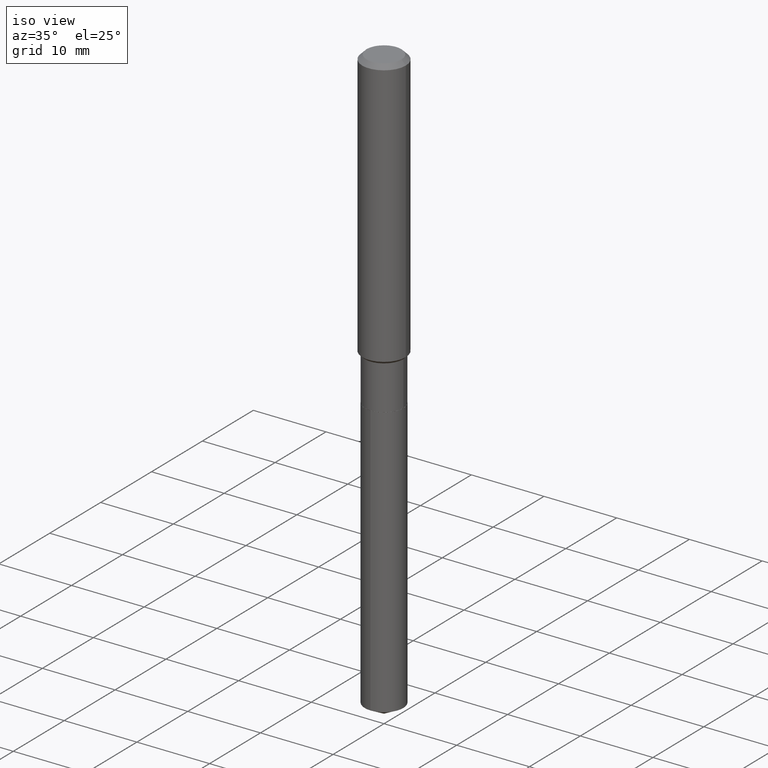
[diagram: clean part render]
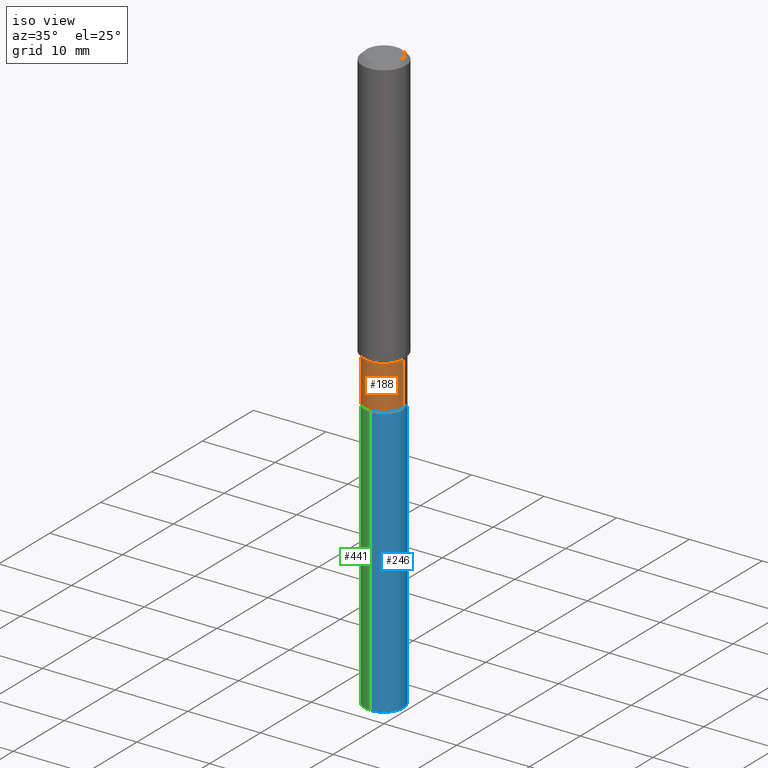
[diagram: same view with three faces highlighted in distinct colors, each labeled with its STEP entity id]
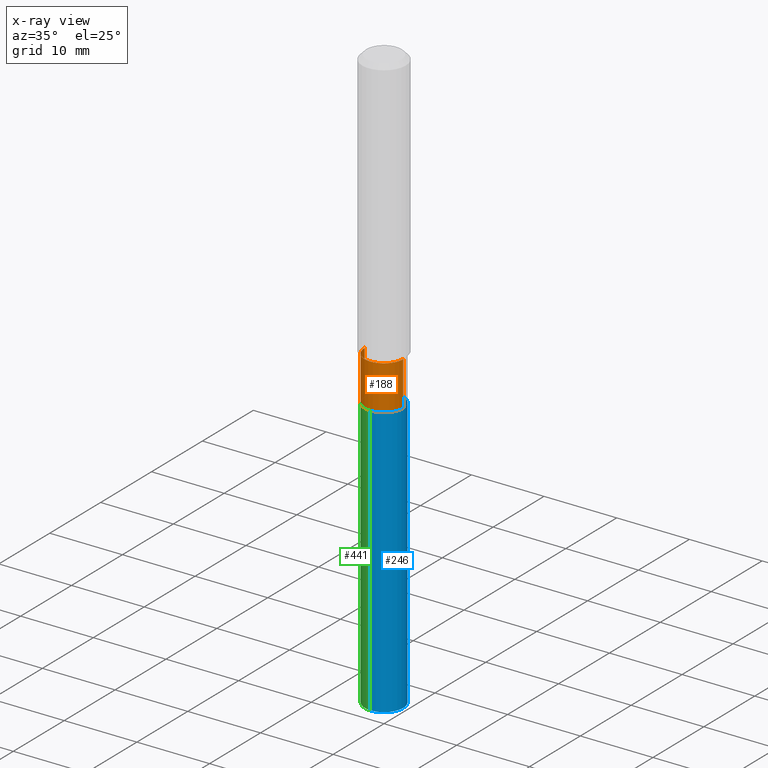
[diagram: x-ray of the same camera — body ghosted, the three highlighted faces saturated]
A machine part, iso view with three faces highlighted in distinct colors.
The next image is the same camera in x-ray (body ghosted, the three faces saturated) — at least one of them is partly hidden behind the body in this view.
Their STEP definitions:

[orange] entity #188 — the highlighted cylindrical surface (edge-blend (fillet) strip) has radius 2.6505 mm, axis along (-0, 0, 1).
#8 = EDGE_CURVE ( 'NONE', #153, #382, #288, .T. ) ;
#35 = CARTESIAN_POINT ( 'NONE',  ( 4.167567939500710177E-29, -5.950182497656488633E-15, -1.704200000000000159 ) ) ;
#38 = CARTESIAN_POINT ( 'NONE',  ( 3.581878160419369815E-29, -5.113972717003555292E-15, -1.464700000000000113 ) ) ;
#43 = DIRECTION ( 'NONE',  ( -2.445468806185136597E-29, 3.491481338843145583E-15, 1.000000000000000000 ) ) ;
#59 = CIRCLE ( 'NONE', #336, 0.1043499999999999567 ) ;
#70 = VERTEX_POINT ( 'NONE', #324 ) ;
#91 = DIRECTION ( 'NONE',  ( -2.445468806185136877E-29, 3.491481338843145188E-15, 1.000000000000000000 ) ) ;
#94 = ORIENTED_EDGE ( 'NONE', *, *, #369, .T. ) ;
#119 = DIRECTION ( 'NONE',  ( 1.000000000000000000, -6.982962677686265922E-15, 0.000000000000000000 ) ) ;
#120 = ORIENTED_EDGE ( 'NONE', *, *, #8, .F. ) ;
#122 = ORIENTED_EDGE ( 'NONE', *, *, #364, .T. ) ;
#136 = CYLINDRICAL_SURFACE ( 'NONE', #283, 0.1043499999999999706 ) ;
#142 = DIRECTION ( 'NONE',  ( 1.000000000000000000, -6.982962677686266711E-15, 4.876176775795936353E-29 ) ) ;
#153 = VERTEX_POINT ( 'NONE', #295 ) ;
#156 = VERTEX_POINT ( 'NONE', #405 ) ;
#175 = CARTESIAN_POINT ( 'NONE',  ( 0.000000000000000000, 0.000000000000000000, 0.000000000000000000 ) ) ;
#182 = VECTOR ( 'NONE', #91, 39.37007874015748143 ) ;
#188 = ADVANCED_FACE ( 'NONE', ( #258 ), #136, .T. ) ;
#258 = FACE_OUTER_BOUND ( 'NONE', #458, .T. ) ;
#259 = VECTOR ( 'NONE', #457, 39.37007874015748143 ) ;
#261 = DIRECTION ( 'NONE',  ( -2.445468806185136597E-29, 3.491481338843145583E-15, 1.000000000000000000 ) ) ;
#268 = CARTESIAN_POINT ( 'NONE',  ( 0.1043499999999999706, -7.286721554165617206E-16, 5.088290465543058008E-30 ) ) ;
#283 = AXIS2_PLACEMENT_3D ( 'NONE', #175, #437, #142 ) ;
#288 = LINE ( 'NONE', #316, #182 ) ;
#295 = CARTESIAN_POINT ( 'NONE',  ( -0.1043499999999999844, -4.790626262564358219E-15, -1.704200000000000159 ) ) ;
#303 = CARTESIAN_POINT ( 'NONE',  ( -0.1043499999999999567, -4.790626262564358219E-15, -1.464700000000000113 ) ) ;
#305 = DIRECTION ( 'NONE',  ( 1.000000000000000000, -6.982962677686263555E-15, 0.000000000000000000 ) ) ;
#316 = CARTESIAN_POINT ( 'NONE',  ( -0.1043499999999999706, 7.414513447656643348E-16, -5.132908766680992704E-30 ) ) ;
#317 = EDGE_CURVE ( 'NONE', #382, #156, #59, .T. ) ;
#324 = CARTESIAN_POINT ( 'NONE',  ( 0.1043499999999999844, -6.678854653073050255E-15, -1.704200000000000159 ) ) ;
#336 = AXIS2_PLACEMENT_3D ( 'NONE', #38, #43, #119 ) ;
#364 = EDGE_CURVE ( 'NONE', #153, #70, #402, .T. ) ;
#369 = EDGE_CURVE ( 'NONE', #70, #156, #378, .T. ) ;
#371 = ORIENTED_EDGE ( 'NONE', *, *, #317, .F. ) ;
#378 = LINE ( 'NONE', #268, #259 ) ;
#382 = VERTEX_POINT ( 'NONE', #303 ) ;
#402 = CIRCLE ( 'NONE', #471, 0.1043499999999999844 ) ;
#405 = CARTESIAN_POINT ( 'NONE',  ( 0.1043499999999999567, -5.842644872420116914E-15, -1.464700000000000113 ) ) ;
#437 = DIRECTION ( 'NONE',  ( -2.445468806185136597E-29, 3.491481338843145583E-15, 1.000000000000000000 ) ) ;
#457 = DIRECTION ( 'NONE',  ( -2.445468806185136877E-29, 3.491481338843145188E-15, 1.000000000000000000 ) ) ;
#458 = EDGE_LOOP ( 'NONE', ( #120, #122, #94, #371 ) ) ;
#471 = AXIS2_PLACEMENT_3D ( 'NONE', #35, #261, #305 ) ;

[blue] entity #246 — the highlighted cylindrical surface (edge-blend (fillet) strip) has radius 2.6505 mm, axis along (-0, 0, 1).
#21 = EDGE_CURVE ( 'NONE', #53, #157, #96, .T. ) ;
#32 = CYLINDRICAL_SURFACE ( 'NONE', #103, 0.1043499999999999844 ) ;
#50 = AXIS2_PLACEMENT_3D ( 'NONE', #413, #347, #83 ) ;
#53 = VERTEX_POINT ( 'NONE', #468 ) ;
#64 = CARTESIAN_POINT ( 'NONE',  ( 7.414513447657423334E-16, 0.1043499999999940447, -1.704700000000000326 ) ) ;
#69 = CARTESIAN_POINT ( 'NONE',  ( -7.286721554165200096E-16, -0.1043500000000059519, -1.704699999999999660 ) ) ;
#73 = ORIENTED_EDGE ( 'NONE', *, *, #340, .F. ) ;
#75 = CIRCLE ( 'NONE', #203, 0.1043499999999999844 ) ;
#79 = ORIENTED_EDGE ( 'NONE', *, *, #278, .F. ) ;
#83 = DIRECTION ( 'NONE',  ( -6.982962677686265922E-15, -1.000000000000000000, 2.617966452960482631E-15 ) ) ;
#96 = LINE ( 'NONE', #387, #290 ) ;
#103 = AXIS2_PLACEMENT_3D ( 'NONE', #370, #331, #484 ) ;
#109 = LINE ( 'NONE', #69, #274 ) ;
#110 = VERTEX_POINT ( 'NONE', #444 ) ;
#118 = ORIENTED_EDGE ( 'NONE', *, *, #21, .T. ) ;
#157 = VERTEX_POINT ( 'NONE', #64 ) ;
#178 = CARTESIAN_POINT ( 'NONE',  ( 7.759008975054495409E-29, -1.107784814879499079E-14, -3.172816120806124740 ) ) ;
#192 = EDGE_LOOP ( 'NONE', ( #453, #118, #73, #79 ) ) ;
#202 = EDGE_CURVE ( 'NONE', #271, #53, #75, .T. ) ;
#203 = AXIS2_PLACEMENT_3D ( 'NONE', #178, #221, #401 ) ;
#221 = DIRECTION ( 'NONE',  ( -2.445459354522547026E-29, 3.491494874161929332E-15, 1.000000000000000000 ) ) ;
#224 = FACE_OUTER_BOUND ( 'NONE', #192, .T. ) ;
#226 = DIRECTION ( 'NONE',  ( -2.445459354522547026E-29, 3.491494874161929332E-15, 1.000000000000000000 ) ) ;
#244 = DIRECTION ( 'NONE',  ( -2.445459354522547026E-29, 3.491494874161929332E-15, 1.000000000000000000 ) ) ;
#246 = ADVANCED_FACE ( 'NONE', ( #224 ), #32, .T. ) ;
#266 = CIRCLE ( 'NONE', #50, 0.1043499999999999844 ) ;
#271 = VERTEX_POINT ( 'NONE', #297 ) ;
#274 = VECTOR ( 'NONE', #226, 39.37007874015748143 ) ;
#278 = EDGE_CURVE ( 'NONE', #271, #110, #109, .T. ) ;
#290 = VECTOR ( 'NONE', #244, 39.37007874015748143 ) ;
#297 = CARTESIAN_POINT ( 'NONE',  ( -7.286721554164842150E-16, -0.1043500000000110589, -3.172816120806124296 ) ) ;
#331 = DIRECTION ( 'NONE',  ( -2.445459354522547026E-29, 3.491494874161929332E-15, 1.000000000000000000 ) ) ;
#340 = EDGE_CURVE ( 'NONE', #110, #157, #266, .T. ) ;
#347 = DIRECTION ( 'NONE',  ( -2.445459354522547026E-29, 3.491494874161929332E-15, 1.000000000000000000 ) ) ;
#370 = CARTESIAN_POINT ( 'NONE',  ( 4.168790673903801858E-29, -5.951928238325910137E-15, -1.704699999999999882 ) ) ;
#387 = CARTESIAN_POINT ( 'NONE',  ( 7.414513447657060458E-16, 0.1043499999999940309, -1.704700000000000326 ) ) ;
#401 = DIRECTION ( 'NONE',  ( -6.982962677686265922E-15, -1.000000000000000000, 5.235932905920965262E-15 ) ) ;
#413 = CARTESIAN_POINT ( 'NONE',  ( 4.168790673903801858E-29, -5.951928238325910137E-15, -1.704699999999999882 ) ) ;
#444 = CARTESIAN_POINT ( 'NONE',  ( -7.286721554165200096E-16, -0.1043500000000059519, -1.704699999999999660 ) ) ;
#453 = ORIENTED_EDGE ( 'NONE', *, *, #202, .T. ) ;
#468 = CARTESIAN_POINT ( 'NONE',  ( 7.414513447657420375E-16, 0.1043499999999889100, -3.172816120806125628 ) ) ;
#484 = DIRECTION ( 'NONE',  ( -6.982962677686265922E-15, -1.000000000000000000, 2.617966452960482631E-15 ) ) ;

[green] entity #441 — the highlighted cylindrical surface (edge-blend (fillet) strip) has radius 2.6505 mm, axis along (-0, 0, 1).
#21 = EDGE_CURVE ( 'NONE', #53, #157, #96, .T. ) ;
#31 = CARTESIAN_POINT ( 'NONE',  ( 7.759008975054495409E-29, -1.107784814879499079E-14, -3.172816120806124740 ) ) ;
#53 = VERTEX_POINT ( 'NONE', #468 ) ;
#64 = CARTESIAN_POINT ( 'NONE',  ( 7.414513447657423334E-16, 0.1043499999999940447, -1.704700000000000326 ) ) ;
#69 = CARTESIAN_POINT ( 'NONE',  ( -7.286721554165200096E-16, -0.1043500000000059519, -1.704699999999999660 ) ) ;
#77 = CYLINDRICAL_SURFACE ( 'NONE', #222, 0.1043499999999999844 ) ;
#85 = AXIS2_PLACEMENT_3D ( 'NONE', #31, #219, #365 ) ;
#96 = LINE ( 'NONE', #387, #290 ) ;
#99 = ORIENTED_EDGE ( 'NONE', *, *, #21, .F. ) ;
#109 = LINE ( 'NONE', #69, #274 ) ;
#110 = VERTEX_POINT ( 'NONE', #444 ) ;
#113 = CARTESIAN_POINT ( 'NONE',  ( 4.168790673903801858E-29, -5.951928238325910137E-15, -1.704699999999999882 ) ) ;
#133 = ORIENTED_EDGE ( 'NONE', *, *, #198, .T. ) ;
#154 = DIRECTION ( 'NONE',  ( -6.982962677686265922E-15, -1.000000000000000000, 2.617966452960482631E-15 ) ) ;
#157 = VERTEX_POINT ( 'NONE', #64 ) ;
#193 = CIRCLE ( 'NONE', #85, 0.1043499999999999844 ) ;
#195 = CARTESIAN_POINT ( 'NONE',  ( 4.168790673903801858E-29, -5.951928238325910137E-15, -1.704699999999999882 ) ) ;
#198 = EDGE_CURVE ( 'NONE', #53, #271, #193, .T. ) ;
#208 = EDGE_LOOP ( 'NONE', ( #99, #133, #302, #487 ) ) ;
#219 = DIRECTION ( 'NONE',  ( -2.445459354522547026E-29, 3.491494874161929332E-15, 1.000000000000000000 ) ) ;
#222 = AXIS2_PLACEMENT_3D ( 'NONE', #195, #232, #154 ) ;
#226 = DIRECTION ( 'NONE',  ( -2.445459354522547026E-29, 3.491494874161929332E-15, 1.000000000000000000 ) ) ;
#232 = DIRECTION ( 'NONE',  ( -2.445459354522547026E-29, 3.491494874161929332E-15, 1.000000000000000000 ) ) ;
#244 = DIRECTION ( 'NONE',  ( -2.445459354522547026E-29, 3.491494874161929332E-15, 1.000000000000000000 ) ) ;
#271 = VERTEX_POINT ( 'NONE', #297 ) ;
#274 = VECTOR ( 'NONE', #226, 39.37007874015748143 ) ;
#278 = EDGE_CURVE ( 'NONE', #271, #110, #109, .T. ) ;
#290 = VECTOR ( 'NONE', #244, 39.37007874015748143 ) ;
#297 = CARTESIAN_POINT ( 'NONE',  ( -7.286721554164842150E-16, -0.1043500000000110589, -3.172816120806124296 ) ) ;
#301 = DIRECTION ( 'NONE',  ( -2.445459354522547026E-29, 3.491494874161929332E-15, 1.000000000000000000 ) ) ;
#302 = ORIENTED_EDGE ( 'NONE', *, *, #278, .T. ) ;
#314 = CIRCLE ( 'NONE', #389, 0.1043499999999999844 ) ;
#365 = DIRECTION ( 'NONE',  ( -6.982962677686265922E-15, -1.000000000000000000, 5.235932905920965262E-15 ) ) ;
#380 = DIRECTION ( 'NONE',  ( -6.982962677686265922E-15, -1.000000000000000000, 2.617966452960482631E-15 ) ) ;
#387 = CARTESIAN_POINT ( 'NONE',  ( 7.414513447657060458E-16, 0.1043499999999940309, -1.704700000000000326 ) ) ;
#389 = AXIS2_PLACEMENT_3D ( 'NONE', #113, #301, #380 ) ;
#409 = FACE_OUTER_BOUND ( 'NONE', #208, .T. ) ;
#436 = EDGE_CURVE ( 'NONE', #157, #110, #314, .T. ) ;
#441 = ADVANCED_FACE ( 'NONE', ( #409 ), #77, .T. ) ;
#444 = CARTESIAN_POINT ( 'NONE',  ( -7.286721554165200096E-16, -0.1043500000000059519, -1.704699999999999660 ) ) ;
#468 = CARTESIAN_POINT ( 'NONE',  ( 7.414513447657420375E-16, 0.1043499999999889100, -3.172816120806125628 ) ) ;
#487 = ORIENTED_EDGE ( 'NONE', *, *, #436, .F. ) ;